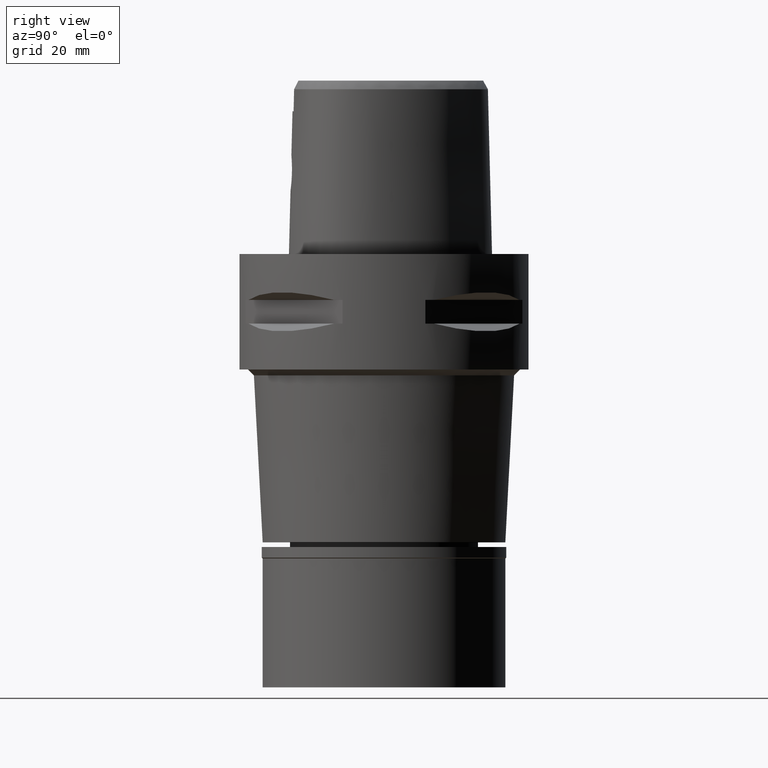
[diagram: clean part render]
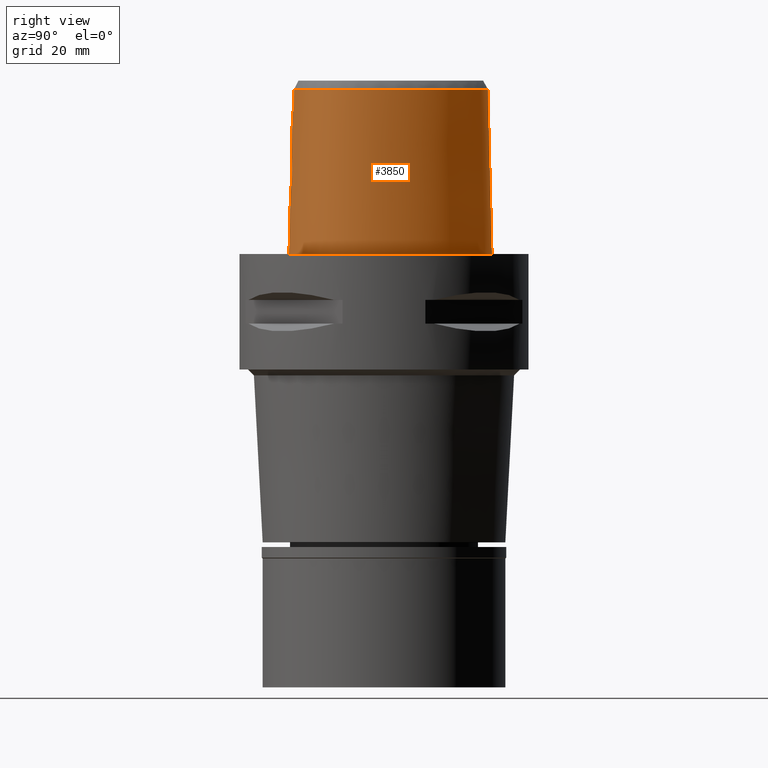
[diagram: same view with one face highlighted and labeled with its STEP entity id]
A machine part, right view. The second image highlights one B-rep face of the part: STEP entity #3850.
In plain terms, the highlighted face is a freeform B-spline surface patch.
Its self-contained STEP definition (entity closure, byte-faithful):
#26 = CARTESIAN_POINT ( 'NONE',  ( 2.975249651912823978, -15.92914271478721844, 14.67846616982687458 ) ) ;
#31 = CARTESIAN_POINT ( 'NONE',  ( 6.782136804503950174E-08, -15.90128720080378955, 22.15000025259135441 ) ) ;
#46 = VERTEX_POINT ( 'NONE', #3898 ) ;
#50 = CARTESIAN_POINT ( 'NONE',  ( 3.041209740384549942, -15.94490574327321930, 13.76368115324908281 ) ) ;
#74 = CARTESIAN_POINT ( 'NONE',  ( 1.935527014342864449, -16.09705987418944773, 11.64218429701640112 ) ) ;
#97 = CARTESIAN_POINT ( 'NONE',  ( 3.048883421515427461, -15.94046337244652278, 13.90502257973829003 ) ) ;
#106 = CARTESIAN_POINT ( 'NONE',  ( 16.68217931977999768, -8.451606616077000922, -0.5704146339717000025 ) ) ;
#127 = CARTESIAN_POINT ( 'NONE',  ( 0.1898211197376006576, -16.18126839358999547, 10.94999999999999574 ) ) ;
#161 = CARTESIAN_POINT ( 'NONE',  ( 11.57144730512000130, -13.50085886465999963, 9.316772354871000417 ) ) ;
#164 = LINE ( 'NONE', #3989, #2437 ) ;
#184 = CARTESIAN_POINT ( 'NONE',  ( 1.286803365320000170, -15.75925590089000039, 29.09114633255999749 ) ) ;
#233 = B_SPLINE_SURFACE_WITH_KNOTS ( 'NONE', 3, 3, ( 
 ( #3558, #1279, #1700, #2074 ),
 ( #4782, #3184, #3986, #545 ),
 ( #2502, #3158, #2048, #184 ),
 ( #1682, #4755, #4336, #3959 ),
 ( #3583, #1324, #567, #4711 ),
 ( #2862, #161, #4729, #4685 ),
 ( #4390, #1297, #4412, #1348 ),
 ( #1657, #968, #1257, #4012 ),
 ( #590, #2094, #2833, #3628 ),
 ( #989, #2124, #4361, #2812 ),
 ( #106, #2792, #4316, #913 ),
 ( #2411, #892, #3930, #518 ),
 ( #2024, #1800, #4167, #341 ),
 ( #1772, #1115, #3304, #2173 ),
 ( #2228, #1847, #2629, #1062 ),
 ( #1448, #3674, #3008, #1477 ),
 ( #238, #3281, #4538, #1374 ),
 ( #2200, #3378, #1038, #695 ),
 ( #1086, #2530, #2961, #3753 ),
 ( #4905, #2605, #1748, #2984 ),
 ( #4804, #741, #3654, #4826 ),
 ( #2911, #4143, #3729, #721 ),
 ( #4855, #4067, #4436, #4488 ),
 ( #1015, #646, #2150, #264 ) ),
 .UNSPECIFIED., .F., .F., .F.,
 ( 4, 1, 1, 1, 1, 1, 1, 1, 1, 1, 1, 1, 1, 1, 1, 1, 1, 1, 1, 1, 1, 4 ),
 ( 4, 4 ),
 ( -0.01796851319152999865, 0.0000000000000000000, 0.08333333333362000217, 0.1666666666669000263, 0.2083333333334000115, 0.2500000000000000000, 0.2916666666666999919, 0.3124999999998999689, 0.3333333333332000326, 0.3541666666666000163, 0.3749999999998999689, 0.4166666666665000407, 0.4583333333330000259, 0.4999999999996999622, 0.5833333333328000192, 0.6666666666660999718, 0.7499999999993000044, 0.8333333333325000369, 0.9166666666657999896, 0.9583333333322999747, 1.000000000000000000, 1.011711214084999977 ),
 ( 3.247663856592999975E-09, 0.9999998343691000047 ),
 .UNSPECIFIED. ) ;
#238 = CARTESIAN_POINT ( 'NONE',  ( 14.39249255082999923, 8.309508947907000120, -0.5704146339717000025 ) ) ;
#254 = CARTESIAN_POINT ( 'NONE',  ( 1.859549321997236992, -15.98255794229956628, 16.41807320997656561 ) ) ;
#256 = CARTESIAN_POINT ( 'NONE',  ( 4.728927209931854669, 17.73480469412656291, -2.900161846786097897E-07 ) ) ;
#264 = CARTESIAN_POINT ( 'NONE',  ( -0.5293535142052000486, 17.95181578524999821, 29.09114633255999749 ) ) ;
#336 = CARTESIAN_POINT ( 'NONE',  ( 17.71143736288551196, -3.269218749953240355, -2.900161846786097897E-07 ) ) ;
#341 = CARTESIAN_POINT ( 'NONE',  ( 16.84071414986000192, -5.352498125280000352, 29.09114633255999749 ) ) ;
#396 = CARTESIAN_POINT ( 'NONE',  ( 2.030224829794000080E-07, -15.83752876601000281, 24.70000006102999990 ) ) ;
#404 = CARTESIAN_POINT ( 'NONE',  ( 15.84228676733546948, 3.460033425849510902, 28.52071728562183495 ) ) ;
#435 = CARTESIAN_POINT ( 'NONE',  ( 2.130834279647308982, -16.07853149005595839, 11.81777582520773784 ) ) ;
#462 = CARTESIAN_POINT ( 'NONE',  ( 1.158353828547446396, -16.15167258786867777, 11.17852165137637144 ) ) ;
#470 = CARTESIAN_POINT ( 'NONE',  ( 3.191384142201736829, -15.58827398948734633, 27.24714251809000132 ) ) ;
#471 = VERTEX_POINT ( 'NONE', #2406 ) ;
#490 = CARTESIAN_POINT ( 'NONE',  ( 0.6770584128777843436, -16.17132556088388995, 11.02443681068324643 ) ) ;
#500 = CARTESIAN_POINT ( 'NONE',  ( 13.06460231238459713, -11.91950040983860326, 28.52071728562183495 ) ) ;
#508 = VERTEX_POINT ( 'NONE', #1696 ) ;
#510 = CARTESIAN_POINT ( 'NONE',  ( 0.9939297242891761419, -16.15959612542590662, 11.11569146158397814 ) ) ;
#518 = CARTESIAN_POINT ( 'NONE',  ( 16.46533711003999656, -6.958244310690000489, 29.09114633255999749 ) ) ;
#545 = CARTESIAN_POINT ( 'NONE',  ( -0.7074880730382999694, -15.72098119543000116, 29.09114633255999749 ) ) ;
#567 = CARTESIAN_POINT ( 'NONE',  ( 8.782085154623000989, -14.58525472112999921, 19.20395934371000024 ) ) ;
#578 = CARTESIAN_POINT ( 'NONE',  ( 0.0000000000000000000, -16.02877864023999877, 17.05000000000000071 ) ) ;
#590 = CARTESIAN_POINT ( 'NONE',  ( 15.66039569233999806, -10.22138777337000093, -0.5704146339717000025 ) ) ;
#637 = CARTESIAN_POINT ( 'NONE',  ( 1.779262221764184249, -15.98633376436653108, 16.47774649146144554 ) ) ;
#646 = CARTESIAN_POINT ( 'NONE',  ( -0.5593289302134000218, 18.44521841955999619, 9.316772354871000417 ) ) ;
#665 = CARTESIAN_POINT ( 'NONE',  ( 5.051093168858154847, -16.15562500717818750, -2.900161846786097897E-07 ) ) ;
#695 = CARTESIAN_POINT ( 'NONE',  ( 10.90668509680000042, 11.98047077936000093, 29.09114633255999749 ) ) ;
#721 = CARTESIAN_POINT ( 'NONE',  ( 0.4511781795182999710, 17.98656552537999787, 29.09114633255999749 ) ) ;
#741 = CARTESIAN_POINT ( 'NONE',  ( 1.992618751591999748, 18.32080818435999703, 9.316772354871000417 ) ) ;
#771 = CARTESIAN_POINT ( 'NONE',  ( 4.422474504765450121, 17.08283549833562276, 28.52071728562183495 ) ) ;
#798 = CARTESIAN_POINT ( 'NONE',  ( 1.893775678556270714, 17.84807068955530696, 28.52071728562183495 ) ) ;
#811 = CARTESIAN_POINT ( 'NONE',  ( 3.027798455715707604, -15.95003164277662755, 13.62032956274716966 ) ) ;
#831 = CARTESIAN_POINT ( 'NONE',  ( 2.821425036078518023, -15.93312409536605578, 15.15848376097717853 ) ) ;
#838 = CARTESIAN_POINT ( 'NONE',  ( 3.213444788215948034, -15.61774735051721308, 25.97357128944999971 ) ) ;
#858 = CARTESIAN_POINT ( 'NONE',  ( 2.520317714005605225, -15.94834054842958437, 15.72060082174885132 ) ) ;
#871 = CARTESIAN_POINT ( 'NONE',  ( 15.58740368722119385, -8.999391713746996757, 28.52071728562183495 ) ) ;
#892 = CARTESIAN_POINT ( 'NONE',  ( 16.94089132185999702, -7.099401466331999977, 9.316772354871000417 ) ) ;
#913 = CARTESIAN_POINT ( 'NONE',  ( 16.00353260420999746, -8.149703205087000413, 29.09114633255999749 ) ) ;
#938 = CARTESIAN_POINT ( 'NONE',  ( 3.235096591086000117, -15.64751801257999908, 24.70000006080999810 ) ) ;
#959 = CARTESIAN_POINT ( 'NONE',  ( 2.170299400654048583, -15.96703807926082241, 16.14297866672071891 ) ) ;
#968 = CARTESIAN_POINT ( 'NONE',  ( 14.61870769482999854, -11.12154151466999963, 9.316772354871000417 ) ) ;
#979 = CARTESIAN_POINT ( 'NONE',  ( 2.356615372638851014, -15.95714923954086295, 15.93698914121854315 ) ) ;
#989 = CARTESIAN_POINT ( 'NONE',  ( 16.21839714654000275, -9.363695958397999064, -0.5704146339717000025 ) ) ;
#1005 = CARTESIAN_POINT ( 'NONE',  ( 2.164021906619612245, -15.96736812113673842, 16.14931344321803053 ) ) ;
#1008 = CARTESIAN_POINT ( 'NONE',  ( 17.56373943654394765, -5.455996094781043304, -2.900161846786097897E-07 ) ) ;
#1015 = CARTESIAN_POINT ( 'NONE',  ( -0.5743166382175000084, 18.69191973670999829, -0.5704146339717000025 ) ) ;
#1038 = CARTESIAN_POINT ( 'NONE',  ( 11.09665502580999963, 12.14079280206000000, 19.20395934371000024 ) ) ;
#1062 = CARTESIAN_POINT ( 'NONE',  ( 16.77753622267999845, -0.3562822893972000249, 29.09114633255999749 ) ) ;
#1067 = DIRECTION ( 'NONE',  ( -1.987095108678950929E-12, -0.02499051295371941192, -0.9996876883618752707 ) ) ;
#1076 = VERTEX_POINT ( 'NONE', #1424 ) ;
#1086 = CARTESIAN_POINT ( 'NONE',  ( 7.976721800635999671, 15.84201698484000076, -0.5704146339717000025 ) ) ;
#1115 = CARTESIAN_POINT ( 'NONE',  ( 17.47781020796999840, -3.270737581694000085, 9.316772354871000417 ) ) ;
#1200 = CARTESIAN_POINT ( 'NONE',  ( 2.852909278454515363, -15.93189406616820136, 15.07915126970514308 ) ) ;
#1219 = CARTESIAN_POINT ( 'NONE',  ( 2.759961640973259911, -15.93564958624568639, 15.30749493561489238 ) ) ;
#1230 = CARTESIAN_POINT ( 'NONE',  ( 3.168920890822999770, -15.55911073834000113, 28.52071374672999582 ) ) ;
#1244 = CARTESIAN_POINT ( 'NONE',  ( 2.076784380864719726, -16.08390063340834786, 11.76594178764675114 ) ) ;
#1252 = CARTESIAN_POINT ( 'NONE',  ( 3.235096591086000117, -15.64751801257999908, 24.70000006080999810 ) ) ;
#1257 = CARTESIAN_POINT ( 'NONE',  ( 14.43869631368000128, -10.95090978980999985, 19.20395934371000024 ) ) ;
#1269 = CARTESIAN_POINT ( 'NONE',  ( -3.094567913400000190E-12, -16.18126839358999902, 10.94999999999999929 ) ) ;
#1279 = CARTESIAN_POINT ( 'NONE',  ( -1.079551362552999993, -16.20136646647000234, 9.316772354871000417 ) ) ;
#1297 = CARTESIAN_POINT ( 'NONE',  ( 13.36241664513000060, -12.29868534039000139, 9.316772354871000417 ) ) ;
#1316 = CARTESIAN_POINT ( 'NONE',  ( 1.898958778535287495, -15.98067541706731376, 16.38724889510307747 ) ) ;
#1324 = CARTESIAN_POINT ( 'NONE',  ( 8.866858747505999006, -14.81887821867000099, 9.316772354871000417 ) ) ;
#1339 = CARTESIAN_POINT ( 'NONE',  ( 2.196663950529425868, -15.96564993910013008, 16.11602529263611316 ) ) ;
#1344 = EDGE_CURVE ( 'NONE', #508, #1641, #3837, .T. ) ;
#1348 = CARTESIAN_POINT ( 'NONE',  ( 13.05575611195000008, -11.90823719806999925, 29.09114633255999749 ) ) ;
#1364 = CARTESIAN_POINT ( 'NONE',  ( 1.737183591012293027, -15.98828192606207388, 16.50739953107601821 ) ) ;
#1374 = CARTESIAN_POINT ( 'NONE',  ( 13.74710214631999960, 7.936918656731999810, 29.09114633255999749 ) ) ;
#1394 = CARTESIAN_POINT ( 'NONE',  ( 0.6801907863946490274, 18.69500000724892175, -2.900161846786097897E-07 ) ) ;
#1403 = EDGE_CURVE ( 'NONE', #471, #2338, #1931, .T. ) ;
#1424 = CARTESIAN_POINT ( 'NONE',  ( -2.866360985331999843E-11, 17.98202997909999823, 28.52071728569000086 ) ) ;
#1425 = CARTESIAN_POINT ( 'NONE',  ( 3.168920890822999770, -15.55911073834000113, 28.52071374672999582 ) ) ;
#1448 = CARTESIAN_POINT ( 'NONE',  ( 16.53021708422999936, 3.708305583942999917, -0.5704146339717000025 ) ) ;
#1477 = CARTESIAN_POINT ( 'NONE',  ( 15.82879759007999709, 3.455165218901999680, 29.09114633255999749 ) ) ;
#1492 = CARTESIAN_POINT ( 'NONE',  ( 16.66912842803894534, -8.445800784202134537, -2.900161846786097897E-07 ) ) ;
#1540 = CARTESIAN_POINT ( 'NONE',  ( 2.907704111751938214, -15.93016185020670861, 14.92213459652817953 ) ) ;
#1555 = CARTESIAN_POINT ( 'NONE',  ( 3.235096591086000117, -15.64751801257999908, 24.70000006080999810 ) ) ;
#1570 = CARTESIAN_POINT ( 'NONE',  ( 2.796681338619851243, -15.99533385695051813, 12.78273984513788442 ) ) ;
#1594 = CARTESIAN_POINT ( 'NONE',  ( 2.951306861662620129, -15.92924742299003960, 14.77626636585412001 ) ) ;
#1606 = CARTESIAN_POINT ( 'NONE',  ( 15.07117004567324869, -9.793013887526587524, 28.52071728562183495 ) ) ;
#1617 = CARTESIAN_POINT ( 'NONE',  ( 3.049961347112722265, -15.93921296701098989, 13.94964838113523520 ) ) ;
#1641 = VERTEX_POINT ( 'NONE', #4124 ) ;
#1645 = CARTESIAN_POINT ( 'NONE',  ( 1.719191830040013080, -16.11523926597387302, 11.47872671524808474 ) ) ;
#1657 = CARTESIAN_POINT ( 'NONE',  ( 14.79871907599000025, -11.29217323954000207, -0.5704146339717000025 ) ) ;
#1682 = CARTESIAN_POINT ( 'NONE',  ( 5.053620743580999886, -16.16974068325999880, -0.5704146339717000025 ) ) ;
#1696 = CARTESIAN_POINT ( 'NONE',  ( 2.030224829794000080E-07, -15.83752876601000281, 24.70000006102999990 ) ) ;
#1700 = CARTESIAN_POINT ( 'NONE',  ( -1.070056062469000091, -15.95437371537000004, 19.20395934371000024 ) ) ;
#1748 = CARTESIAN_POINT ( 'NONE',  ( 4.522582283159000127, 17.29581187828000211, 19.20395934371000024 ) ) ;
#1766 = CARTESIAN_POINT ( 'NONE',  ( 2.040572359159892546, 18.55015625714442606, -2.900161846786097897E-07 ) ) ;
#1772 = CARTESIAN_POINT ( 'NONE',  ( 17.72574105853000148, -3.269125760304999684, -0.5704146339717000025 ) ) ;
#1800 = CARTESIAN_POINT ( 'NONE',  ( 17.33218231368999795, -5.422849685547000753, 9.316772354871000417 ) ) ;
#1819 = CARTESIAN_POINT ( 'NONE',  ( 9.149203677431999547E-11, 18.69499999997999851, 2.020235830475999669E-13 ) ) ;
#1847 = CARTESIAN_POINT ( 'NONE',  ( 17.26695539681000113, -0.2694874652317999497, 9.316772354871000417 ) ) ;
#1867 = CARTESIAN_POINT ( 'NONE',  ( -2.486005696898000252E-11, -16.45500000000000185, 2.032818358088999889E-13 ) ) ;
#1906 = CARTESIAN_POINT ( 'NONE',  ( 16.99625257117610744, -3.273868232426860647, 28.52071728562183495 ) ) ;
#1917 = CARTESIAN_POINT ( 'NONE',  ( 3.050149896193000476, -15.93316336324771676, 14.18941404704232490 ) ) ;
#1930 = CARTESIAN_POINT ( 'NONE',  ( 13.75951381385726258, 7.944084035686027612, 28.52071728562183495 ) ) ;
#1931 = B_SPLINE_CURVE_WITH_KNOTS ( 'NONE', 3,
 ( #1867, #2598, #665, #3403, #2169, #4484, #4926, #4532, #4163, #1492, #3352, #1008, #336, #2549, #4060, #3772, #4849, #2146, #256, #1766, #1394, #1819 ),
 .UNSPECIFIED., .F., .F.,
 ( 4, 1, 1, 1, 1, 1, 1, 1, 1, 1, 1, 1, 1, 1, 1, 1, 1, 1, 1, 4 ),
 ( 0.0000000000000000000, 0.08333333333362000217, 0.1666666666669000263, 0.2083333333334000115, 0.2500000000000000000, 0.2916666666666999919, 0.3124999999998999689, 0.3333333333332000326, 0.3541666666666000163, 0.3749999999998999689, 0.4166666666665000407, 0.4583333333330000259, 0.4999999999996999622, 0.5833333333328000192, 0.6666666666660999718, 0.7499999999993000044, 0.8333333333325000369, 0.9166666666657999896, 0.9583333333322999747, 1.000000000000000000 ),
 .UNSPECIFIED. ) ;
#1940 = CARTESIAN_POINT ( 'NONE',  ( 2.806282367902103836, -15.99380854387472084, 12.80500890572250228 ) ) ;
#1970 = CARTESIAN_POINT ( 'NONE',  ( 2.775961287969037183, -15.99857004330619148, 12.73620107529055190 ) ) ;
#1984 = CARTESIAN_POINT ( 'NONE',  ( -2.866360985331999843E-11, 17.98202997909999823, 28.52071728569000086 ) ) ;
#1996 = CARTESIAN_POINT ( 'NONE',  ( 3.044506884776515321, -15.94333381584075582, 13.81108558313461110 ) ) ;
#2003 = CARTESIAN_POINT ( 'NONE',  ( 1.084489111473279310, -15.83754148654025684, 24.70000016056461689 ) ) ;
#2005 = CARTESIAN_POINT ( 'NONE',  ( 11.33338046473958549, -13.08225241901623015, 28.52071728562183495 ) ) ;
#2016 = CARTESIAN_POINT ( 'NONE',  ( 1.150837130458770563, -16.15205889506641057, 11.17544410961306589 ) ) ;
#2024 = CARTESIAN_POINT ( 'NONE',  ( 17.57791639559999908, -5.458025465679999577, -0.5704146339717000025 ) ) ;
#2048 = CARTESIAN_POINT ( 'NONE',  ( 1.298308559161999831, -16.00668754879000133, 19.20395934371000024 ) ) ;
#2074 = CARTESIAN_POINT ( 'NONE',  ( -1.060560762384000100, -15.70738096428000041, 29.09114633255999749 ) ) ;
#2094 = CARTESIAN_POINT ( 'NONE',  ( 15.46013589622000062, -10.07579657664000017, 9.316772354871000417 ) ) ;
#2124 = CARTESIAN_POINT ( 'NONE',  ( 16.00394174692999982, -9.239880075343000598, 9.316772354871000417 ) ) ;
#2144 = CARTESIAN_POINT ( 'NONE',  ( 1.616099766049515107, -15.99381337938741687, 16.58846643699799728 ) ) ;
#2146 = CARTESIAN_POINT ( 'NONE',  ( 7.967839668740831272, 15.83070313074962066, -2.900161846786097897E-07 ) ) ;
#2150 = CARTESIAN_POINT ( 'NONE',  ( -0.5443412222093000352, 18.19851710240999765, 19.20395934371000024 ) ) ;
#2169 = CARTESIAN_POINT ( 'NONE',  ( 11.68694516943986983, -13.70394531881849609, -2.900161846786097897E-07 ) ) ;
#2173 = CARTESIAN_POINT ( 'NONE',  ( 16.98194850684000201, -3.273961224471999998, 29.09114633255999749 ) ) ;
#2200 = CARTESIAN_POINT ( 'NONE',  ( 11.47659488382999982, 12.46143684746999902, -0.5704146339717000025 ) ) ;
#2228 = CARTESIAN_POINT ( 'NONE',  ( 17.51166498387000203, -0.2260900531490000198, -0.5704146339717000025 ) ) ;
#2262 = EDGE_CURVE ( 'NONE', #1076, #2338, #164, .T. ) ;
#2285 = CARTESIAN_POINT ( 'NONE',  ( 7.523733068098718668, 15.26501041873592790, 28.52071728562183495 ) ) ;
#2298 = CARTESIAN_POINT ( 'NONE',  ( 2.744096643855139739, -16.00346064512362076, 12.66698413766678755 ) ) ;
#2320 = CARTESIAN_POINT ( 'NONE',  ( 2.478737183283747925, -16.03986208745244824, 12.22013516386344989 ) ) ;
#2338 = VERTEX_POINT ( 'NONE', #4321 ) ;
#2344 = CARTESIAN_POINT ( 'NONE',  ( 2.957688824804171279, -15.96752846870873022, 13.22897551199208444 ) ) ;
#2376 = CARTESIAN_POINT ( 'NONE',  ( 0.7748558813816244228, -16.16821842566323042, 11.04831638025946816 ) ) ;
#2389 = CARTESIAN_POINT ( 'NONE',  ( 5.902447799198637490, -15.16907841529767964, 28.52071728562183139 ) ) ;
#2406 = CARTESIAN_POINT ( 'NONE',  ( -2.486005696898000252E-11, -16.45500000000000185, 2.032818358088999889E-13 ) ) ;
#2411 = CARTESIAN_POINT ( 'NONE',  ( 17.17866842776000169, -7.169980044153000165, -0.5704146339717000025 ) ) ;
#2423 = CARTESIAN_POINT ( 'NONE',  ( 2.180887052763814449, -15.96648089881372279, 16.13220278528723384 ) ) ;
#2437 = VECTOR ( 'NONE', #2840, 1000.000000000000114 ) ;
#2492 = CARTESIAN_POINT ( 'NONE',  ( 1.354452607727719249, -16.00396228356807171, 16.73322745257438626 ) ) ;
#2502 = CARTESIAN_POINT ( 'NONE',  ( 1.321318946846000042, -16.50155084457999877, -0.5704146339717000025 ) ) ;
#2522 = CARTESIAN_POINT ( 'NONE',  ( 0.7741482008191986619, -16.02257322970521614, 16.98085959781949938 ) ) ;
#2530 = CARTESIAN_POINT ( 'NONE',  ( 7.822764769509999994, 15.64591008089999669, 9.316772354871000417 ) ) ;
#2549 = CARTESIAN_POINT ( 'NONE',  ( 17.49754713025602015, -0.2285937487269749380, -2.900161846786097897E-07 ) ) ;
#2598 = CARTESIAN_POINT ( 'NONE',  ( 1.683697722945638242, -16.45500000724721801, -2.900161846786097897E-07 ) ) ;
#2605 = CARTESIAN_POINT ( 'NONE',  ( 4.628819273556000091, 17.52182797807000014, 9.316772354871000417 ) ) ;
#2629 = CARTESIAN_POINT ( 'NONE',  ( 17.02224580973999934, -0.3128848773144999873, 19.20395934371000024 ) ) ;
#2698 = CARTESIAN_POINT ( 'NONE',  ( 2.147962331140137238, -16.07679769526338731, 11.83463701146487246 ) ) ;
#2724 = CARTESIAN_POINT ( 'NONE',  ( 2.824468722466921378, -15.93300016794370677, 15.15105085638172433 ) ) ;
#2746 = CARTESIAN_POINT ( 'NONE',  ( 2.681016418395045342, -15.93974068711152547, 15.46783011061541835 ) ) ;
#2766 = LINE ( 'NONE', #4295, #4518 ) ;
#2777 = CARTESIAN_POINT ( 'NONE',  ( 2.638828814099706932, -16.01860464026678343, 12.46732066279884243 ) ) ;
#2792 = CARTESIAN_POINT ( 'NONE',  ( 16.45596374792000205, -8.350972145746998976, 9.316772354871000417 ) ) ;
#2804 = CARTESIAN_POINT ( 'NONE',  ( 2.587629427716052533, -16.02556131009697893, 12.38252332210732654 ) ) ;
#2812 = CARTESIAN_POINT ( 'NONE',  ( 15.57503094770000018, -8.992248309233000114, 29.09114633255999749 ) ) ;
#2823 = ORIENTED_EDGE ( 'NONE', *, *, #4380, .F. ) ;
#2833 = CARTESIAN_POINT ( 'NONE',  ( 15.25987610008999873, -9.930205379906000829, 19.20395934371000024 ) ) ;
#2840 = DIRECTION ( 'NONE',  ( 4.211609386183893157E-12, 0.02499051285773934081, -0.9996876883642746847 ) ) ;
#2853 = CARTESIAN_POINT ( 'NONE',  ( 2.088968113521979753, -15.97131126311716898, 16.22457167555463542 ) ) ;
#2862 = CARTESIAN_POINT ( 'NONE',  ( 11.69401646344000056, -13.71637917664999939, -0.5704146339717000025 ) ) ;
#2877 = CARTESIAN_POINT ( 'NONE',  ( 2.320231428406520635, -15.95909571851455588, 15.98050410814317424 ) ) ;
#2880 = VERTEX_POINT ( 'NONE', #938 ) ;
#2887 = FACE_OUTER_BOUND ( 'NONE', #3360, .T. ) ;
#2900 = CARTESIAN_POINT ( 'NONE',  ( 1.262794661676007291, -16.00712763199256727, 16.77676499123157683 ) ) ;
#2911 = CARTESIAN_POINT ( 'NONE',  ( 0.4897519512914999540, 18.72964555453999935, -0.5704146339717000025 ) ) ;
#2923 = ORIENTED_EDGE ( 'NONE', *, *, #1403, .T. ) ;
#2931 = CARTESIAN_POINT ( 'NONE',  ( 2.232748692361829157, -15.96374470980125082, 16.07819212816551158 ) ) ;
#2961 = CARTESIAN_POINT ( 'NONE',  ( 7.668807738384000317, 15.44980317695999972, 19.20395934371000024 ) ) ;
#2971 = ORIENTED_EDGE ( 'NONE', *, *, #1344, .T. ) ;
#2984 = CARTESIAN_POINT ( 'NONE',  ( 4.416345292761000074, 17.06979577849000052, 29.09114633255999749 ) ) ;
#2999 = ORIENTED_EDGE ( 'NONE', *, *, #3359, .T. ) ;
#3008 = CARTESIAN_POINT ( 'NONE',  ( 16.06260408813000140, 3.539545340581999877, 19.20395934371000024 ) ) ;
#3061 = CARTESIAN_POINT ( 'NONE',  ( 16.85489147434090285, -5.354527548487958200, 28.52071728562183495 ) ) ;
#3073 = CARTESIAN_POINT ( 'NONE',  ( 1.805376232608846498, -16.10834772479885402, 11.53923680361573822 ) ) ;
#3101 = CARTESIAN_POINT ( 'NONE',  ( 2.829313881745448622, -15.93280562740808826, 15.13908937170598179 ) ) ;
#3123 = CARTESIAN_POINT ( 'NONE',  ( 2.883981873338816282, -15.93080840504316420, 14.99485968243840972 ) ) ;
#3133 = CARTESIAN_POINT ( 'NONE',  ( 3.738627708319794962, -15.49270856215552783, 28.52071728562183850 ) ) ;
#3158 = CARTESIAN_POINT ( 'NONE',  ( 1.309813753003999937, -16.25411919668999872, 9.316772354871000417 ) ) ;
#3170 = CARTESIAN_POINT ( 'NONE',  ( 0.3842297570385789229, -16.17878268541347708, 10.96777226348877221 ) ) ;
#3184 = CARTESIAN_POINT ( 'NONE',  ( -0.7201291715429999352, -16.21519150405000076, 9.316772354871000417 ) ) ;
#3281 = CARTESIAN_POINT ( 'NONE',  ( 14.17736241599000024, 8.185312184181999129, 9.316772354871000417 ) ) ;
#3304 = CARTESIAN_POINT ( 'NONE',  ( 17.22987935740000154, -3.272349403083000041, 19.20395934371000024 ) ) ;
#3352 = CARTESIAN_POINT ( 'NONE',  ( 17.16495052477883121, -7.165908205195114178, -2.900161846786097897E-07 ) ) ;
#3359 = EDGE_CURVE ( 'NONE', #1076, #3911, #4255, .T. ) ;
#3360 = EDGE_LOOP ( 'NONE', ( #4324, #2999, #2823, #3619, #2971, #4913, #3482, #2923 ) ) ;
#3378 = CARTESIAN_POINT ( 'NONE',  ( 11.28662495482000061, 12.30111482476999996, 9.316772354871000417 ) ) ;
#3381 = EDGE_CURVE ( 'NONE', #46, #471, #2766, .T. ) ;
#3403 = CARTESIAN_POINT ( 'NONE',  ( 8.946741558671778449, -15.03902344434910532, -2.900161846786097897E-07 ) ) ;
#3449 = CARTESIAN_POINT ( 'NONE',  ( 3.032153927794988046, -15.93034332000361708, 14.38503233290864713 ) ) ;
#3473 = CARTESIAN_POINT ( 'NONE',  ( 1.120763508487453430, -16.15358090583465511, 11.16333240776607560 ) ) ;
#3482 = ORIENTED_EDGE ( 'NONE', *, *, #3381, .T. ) ;
#3498 = CARTESIAN_POINT ( 'NONE',  ( 2.141618861872676138, -16.07744231414368841, 11.82835874812642984 ) ) ;
#3510 = CARTESIAN_POINT ( 'NONE',  ( 0.6295828025445653342, 17.98202997637497447, 28.52071728562183495 ) ) ;
#3520 = CARTESIAN_POINT ( 'NONE',  ( 1.466707760604498256, -16.13401281180512115, 11.31839107166932834 ) ) ;
#3531 = CARTESIAN_POINT ( 'NONE',  ( 8.702202469521855832, -14.36510984286640991, 28.52071728562183495 ) ) ;
#3539 = B_SPLINE_CURVE_WITH_KNOTS ( 'NONE', 3,
 ( #1555, #4656, #2003, #4570 ),
 .UNSPECIFIED., .F., .F.,
 ( 4, 4 ),
 ( 0.0000000000000000000, 1.000000000000000000 ),
 .UNSPECIFIED. ) ;
#3547 = CARTESIAN_POINT ( 'NONE',  ( 2.044225401081650073, -16.08701963945036084, 11.73626748626440630 ) ) ;
#3558 = CARTESIAN_POINT ( 'NONE',  ( -1.089046662636999896, -16.44835921756000019, -0.5704146339717000025 ) ) ;
#3583 = CARTESIAN_POINT ( 'NONE',  ( 8.951632340390000664, -15.05250171620000010, -0.5704146339717000025 ) ) ;
#3588 = B_SPLINE_CURVE_WITH_KNOTS ( 'NONE', 3,
 ( #1252, #838, #470, #3854 ),
 .UNSPECIFIED., .F., .F.,
 ( 4, 4 ),
 ( 0.0000000000000000000, 1.000000000000000000 ),
 .UNSPECIFIED. ) ;
#3619 = ORIENTED_EDGE ( 'NONE', *, *, #3750, .T. ) ;
#3628 = CARTESIAN_POINT ( 'NONE',  ( 15.05961630396999951, -9.784614183172999802, 29.09114633255999749 ) ) ;
#3644 = CARTESIAN_POINT ( 'NONE',  ( 1.399412083726095268, -16.00233608542867358, 16.71046994217811488 ) ) ;
#3654 = CARTESIAN_POINT ( 'NONE',  ( 1.941729210450999776, 18.07741840039999914, 19.20395934371000024 ) ) ;
#3668 = CARTESIAN_POINT ( 'NONE',  ( 0.3724840145390406754, -16.02877864023999877, 17.04999999999999361 ) ) ;
#3674 = CARTESIAN_POINT ( 'NONE',  ( 16.29641058618000216, 3.623925462263000163, 9.316772354871000417 ) ) ;
#3729 = CARTESIAN_POINT ( 'NONE',  ( 0.4640361034427000209, 18.23425886843000043, 19.20395934371000024 ) ) ;
#3750 = EDGE_CURVE ( 'NONE', #2880, #508, #3539, .T. ) ;
#3753 = CARTESIAN_POINT ( 'NONE',  ( 7.514850707257999751, 15.25369627301999920, 29.09114633255999749 ) ) ;
#3772 = CARTESIAN_POINT ( 'NONE',  ( 14.38008120320724714, 8.302343753642793089, -2.900161846786097897E-07 ) ) ;
#3810 = CARTESIAN_POINT ( 'NONE',  ( 10.91764517732384476, 11.98972036053159052, 28.52071728562183495 ) ) ;
#3821 = CARTESIAN_POINT ( 'NONE',  ( 2.417729193041642688, -16.04731727844026423, 12.13798983179897029 ) ) ;
#3837 = B_SPLINE_CURVE_WITH_KNOTS ( 'NONE', 3,
 ( #396, #31, #3901, #3849 ),
 .UNSPECIFIED., .F., .F.,
 ( 4, 4 ),
 ( 0.0000000000000000000, 1.000000000000000000 ),
 .UNSPECIFIED. ) ;
#3849 = CARTESIAN_POINT ( 'NONE',  ( 0.0000000000000000000, -16.02877864023999877, 17.05000000000000071 ) ) ;
#3850 = ADVANCED_FACE ( 'NONE', ( #2887 ), #233, .T. ) ;
#3854 = CARTESIAN_POINT ( 'NONE',  ( 3.168920890822999770, -15.55911073834000113, 28.52071374672999582 ) ) ;
#3860 = CARTESIAN_POINT ( 'NONE',  ( 16.47905536661397718, -6.962316254603480026, 28.52071728562183495 ) ) ;
#3871 = CARTESIAN_POINT ( 'NONE',  ( 1.078575942915589891, -16.15565394761469165, 11.14687127074790318 ) ) ;
#3898 = CARTESIAN_POINT ( 'NONE',  ( -3.094567913400000190E-12, -16.18126839358999902, 10.94999999999999929 ) ) ;
#3899 = CARTESIAN_POINT ( 'NONE',  ( 2.114644142904472446, -16.08015782783963843, 11.80200641015005658 ) ) ;
#3901 = CARTESIAN_POINT ( 'NONE',  ( 6.797657524792993908E-08, -15.96503292052325484, 19.60000012629569710 ) ) ;
#3910 = CARTESIAN_POINT ( 'NONE',  ( 14.26907046692954317, -10.79012245165969652, 28.52071728562183495 ) ) ;
#3911 = VERTEX_POINT ( 'NONE', #1425 ) ;
#3923 = CARTESIAN_POINT ( 'NONE',  ( 1.138812104616091059, -16.15267061231298129, 11.17057442770763842 ) ) ;
#3930 = CARTESIAN_POINT ( 'NONE',  ( 16.70311421595000212, -7.028822888510999789, 19.20395934371000024 ) ) ;
#3959 = CARTESIAN_POINT ( 'NONE',  ( 4.922186791168999598, -15.43572515381999999, 29.09114633255999749 ) ) ;
#3976 = CARTESIAN_POINT ( 'NONE',  ( 1.531589067142498539, -15.99732691922906724, 16.63945844436470267 ) ) ;
#3986 = CARTESIAN_POINT ( 'NONE',  ( -0.7138086222906000478, -15.96808634974000007, 19.20395934371000024 ) ) ;
#3989 = CARTESIAN_POINT ( 'NONE',  ( -2.866360985331999843E-11, 17.98202997909999823, 28.52071728569000086 ) ) ;
#4001 = CARTESIAN_POINT ( 'NONE',  ( 2.459696765391575113, -15.95161770387217004, 15.80683248070965163 ) ) ;
#4012 = CARTESIAN_POINT ( 'NONE',  ( 14.25868493253000047, -10.78027806495000185, 29.09114633255999749 ) ) ;
#4057 = CARTESIAN_POINT ( 'NONE',  ( 2.262444582314412145, -15.96216938760131754, 16.04565077979857435 ) ) ;
#4060 = CARTESIAN_POINT ( 'NONE',  ( 16.51672825466217986, 3.703437502475004806, -2.900161846786097897E-07 ) ) ;
#4067 = CARTESIAN_POINT ( 'NONE',  ( -0.3730031656967999765, 18.45651546891000194, 9.316772354871000417 ) ) ;
#4124 = CARTESIAN_POINT ( 'NONE',  ( 0.0000000000000000000, -16.02877864023999877, 17.05000000000000071 ) ) ;
#4143 = CARTESIAN_POINT ( 'NONE',  ( 0.4768940273671000152, 18.48195221148999678, 9.316772354871000417 ) ) ;
#4163 = CARTESIAN_POINT ( 'NONE',  ( 16.20602472592992882, -9.356552738007430037, -2.900161846786097897E-07 ) ) ;
#4167 = CARTESIAN_POINT ( 'NONE',  ( 17.08644823176999950, -5.387673905413000064, 19.20395934371000024 ) ) ;
#4232 = CARTESIAN_POINT ( 'NONE',  ( 2.836520581861567969, -15.93251973351802597, 15.12113420123081475 ) ) ;
#4245 = CARTESIAN_POINT ( 'NONE',  ( 16.79165444019533737, -0.3537785292840521234, 28.52071728562183495 ) ) ;
#4254 = CARTESIAN_POINT ( 'NONE',  ( 2.709953204679841576, -16.00846021379279449, 12.59958595635182732 ) ) ;
#4255 = B_SPLINE_CURVE_WITH_KNOTS ( 'NONE', 3,
 ( #1984, #3510, #798, #771, #2285, #3810, #1930, #404, #4245, #1906, #3061, #3860, #4658, #871, #1606, #3910, #500, #2005, #3531, #2389, #3133, #1230 ),
 .UNSPECIFIED., .F., .F.,
 ( 4, 1, 1, 1, 1, 1, 1, 1, 1, 1, 1, 1, 1, 1, 1, 1, 1, 1, 1, 4 ),
 ( 0.0000000000000000000, 0.04404152929334483740, 0.08808305858542123112, 0.1761661171698911121, 0.2642491757542553832, 0.3523322343386196542, 0.4404152929230895075, 0.5284983515073480298, 0.5725398807996359141, 0.6165814100917123008, 0.6606229393838943809, 0.6826437040299854209, 0.7046644686761821541, 0.7266852333222733051, 0.7487059979682585409, 0.7927475272605464252, 0.8367890565527285052, 0.8808305858448050030, 0.9689136444292536510, 1.000000000000000000 ),
 .UNSPECIFIED. ) ;
#4295 = CARTESIAN_POINT ( 'NONE',  ( -3.094567913400000190E-12, -16.18126839358999902, 10.94999999999999929 ) ) ;
#4307 = CARTESIAN_POINT ( 'NONE',  ( 2.899217746531571382, -15.97873758491098428, 13.02871175161756412 ) ) ;
#4316 = CARTESIAN_POINT ( 'NONE',  ( 16.22974817606999665, -8.250337675417000582, 19.20395934371000024 ) ) ;
#4320 = B_SPLINE_CURVE_WITH_KNOTS ( 'NONE', 3,
 ( #1269, #127, #3170, #490, #2376, #4328, #510, #3871, #3473, #3923, #2016, #462, #4674, #3520, #1645, #3073, #74, #4602, #3547, #1244, #3899, #435, #3498, #2698, #4701, #4626, #3821, #2320, #2804, #2777, #4254, #2298, #1970, #1570, #1940, #4307, #2344, #4647, #811, #50, #1996, #97, #1617, #1917, #3449, #26, #1594, #1540, #3123, #1200, #4232, #3101, #2724, #831, #1219, #2746, #858, #4001, #979, #2877, #4057, #2931, #1339, #2423, #959, #1005, #2853, #4402, #1316, #254, #637, #1364, #2144, #3976, #3644, #2492, #2900, #4795, #2522, #3668, #578 ),
 .UNSPECIFIED., .F., .F.,
 ( 4, 2, 2, 1, 1, 1, 2, 2, 2, 2, 2, 1, 1, 2, 2, 2, 2, 2, 1, 2, 2, 2, 2, 2, 2, 2, 2, 1, 1, 1, 2, 2, 2, 2, 2, 1, 1, 2, 2, 2, 2, 2, 2, 2, 2, 4 ),
 ( 0.0000000000000000000, 0.06250000000001069977, 0.09375000000001598721, 0.1093750000000186101, 0.1171875000000200118, 0.1210937500000205530, 0.1230468750000209277, 0.1250000000000212885, 0.1875000000000273670, 0.2187500000000302536, 0.2343750000000317524, 0.2421875000000324740, 0.2460937500000328626, 0.2480468750000328904, 0.2500000000000329181, 0.2812500000000295319, 0.3125000000000262013, 0.3437500000000228151, 0.3593750000000211497, 0.3671875000000203726, 0.3750000000000195954, 0.4375000000000126010, 0.4687500000000091593, 0.4843750000000076605, 0.5000000000000061062, 0.5624999999999996669, 0.5937499999999962252, 0.6093749999999946709, 0.6171874999999941158, 0.6210937499999936717, 0.6230468749999934497, 0.6249999999999932276, 0.6874999999999920064, 0.7187499999999911182, 0.7343749999999906741, 0.7421874999999908962, 0.7460937499999910072, 0.7480468749999907851, 0.7499999999999905631, 0.7812499999999924505, 0.7968749999999930056, 0.8124999999999935607, 0.8437499999999946709, 0.8593749999999950040, 0.8749999999999953371, 1.000000000000000000 ),
 .UNSPECIFIED. ) ;
#4321 = CARTESIAN_POINT ( 'NONE',  ( 9.149203677431999547E-11, 18.69499999997999851, 2.020235830475999669E-13 ) ) ;
#4324 = ORIENTED_EDGE ( 'NONE', *, *, #2262, .F. ) ;
#4328 = CARTESIAN_POINT ( 'NONE',  ( 0.9209982704669138487, -16.16262558226605250, 11.09193420934360397 ) ) ;
#4336 = CARTESIAN_POINT ( 'NONE',  ( 4.965998108638999931, -15.68039699695999900, 19.20395934371000024 ) ) ;
#4361 = CARTESIAN_POINT ( 'NONE',  ( 15.78948634730999778, -9.116064192288000356, 19.20395934371000024 ) ) ;
#4380 = EDGE_CURVE ( 'NONE', #2880, #3911, #3588, .T. ) ;
#4390 = CARTESIAN_POINT ( 'NONE',  ( 13.51574691171999909, -12.49390941156000068, -0.5704146339717000025 ) ) ;
#4402 = CARTESIAN_POINT ( 'NONE',  ( 2.014841840659067795, -15.97504399877426984, 16.29192479722134124 ) ) ;
#4412 = CARTESIAN_POINT ( 'NONE',  ( 13.20908637854000034, -12.10346126923000121, 19.20395934371000024 ) ) ;
#4436 = CARTESIAN_POINT ( 'NONE',  ( -0.3630721100751999608, 18.20950144688000094, 19.20395934371000024 ) ) ;
#4484 = CARTESIAN_POINT ( 'NONE',  ( 13.50690093929890878, -12.48264649010354255, -2.900161846786097897E-07 ) ) ;
#4488 = CARTESIAN_POINT ( 'NONE',  ( -0.3531410544534999696, 17.96248742484999639, 29.09114633255999749 ) ) ;
#4518 = VECTOR ( 'NONE', #1067, 1000.000000000000114 ) ;
#4532 = CARTESIAN_POINT ( 'NONE',  ( 15.64884224843796012, -10.21298828552151505, -2.900161846786097897E-07 ) ) ;
#4538 = CARTESIAN_POINT ( 'NONE',  ( 13.96223228116000037, 8.061115420457001690, 19.20395934371000024 ) ) ;
#4570 = CARTESIAN_POINT ( 'NONE',  ( 2.030224829794000080E-07, -15.83752876601000281, 24.70000006102999990 ) ) ;
#4602 = CARTESIAN_POINT ( 'NONE',  ( 1.979050802169605827, -16.09313883417849667, 11.67852903117091579 ) ) ;
#4626 = CARTESIAN_POINT ( 'NONE',  ( 2.290593162244018988, -16.06186194956424984, 11.98364703425943567 ) ) ;
#4647 = CARTESIAN_POINT ( 'NONE',  ( 3.014162081768897661, -15.95399573205361854, 13.52323755265707383 ) ) ;
#4656 = CARTESIAN_POINT ( 'NONE',  ( 2.169052010909175987, -15.77399788591500673, 24.70000016056461689 ) ) ;
#4658 = CARTESIAN_POINT ( 'NONE',  ( 16.01658383235042393, -8.155509186612809103, 28.52071728562183495 ) ) ;
#4674 = CARTESIAN_POINT ( 'NONE',  ( 1.306758668679836255, -16.14399373876757338, 11.23972581489134370 ) ) ;
#4685 = CARTESIAN_POINT ( 'NONE',  ( 11.32630898847000012, -13.06981824068999920, 29.09114633255999749 ) ) ;
#4701 = CARTESIAN_POINT ( 'NONE',  ( 2.223227574825756836, -16.06911398227905252, 11.90960399256272062 ) ) ;
#4711 = CARTESIAN_POINT ( 'NONE',  ( 8.697311561738999330, -14.35163122360000010, 29.09114633255999749 ) ) ;
#4729 = CARTESIAN_POINT ( 'NONE',  ( 11.44887814679000115, -13.28533855267999897, 19.20395934371000024 ) ) ;
#4755 = CARTESIAN_POINT ( 'NONE',  ( 5.009809426109999464, -15.92506884010999890, 9.316772354871000417 ) ) ;
#4782 = CARTESIAN_POINT ( 'NONE',  ( -0.7264497207953001245, -16.46229665835999967, -0.5704146339717000025 ) ) ;
#4795 = CARTESIAN_POINT ( 'NONE',  ( 1.217867162102865830, -16.00861105600193213, 16.79681041045230572 ) ) ;
#4804 = CARTESIAN_POINT ( 'NONE',  ( 2.043508292733000165, 18.56419796830999758, -0.5704146339717000025 ) ) ;
#4826 = CARTESIAN_POINT ( 'NONE',  ( 1.890839669310000026, 17.83402861645000215, 29.09114633255999749 ) ) ;
#4849 = CARTESIAN_POINT ( 'NONE',  ( 11.46563508580556956, 12.45218750470917968, -2.900161846786097897E-07 ) ) ;
#4855 = CARTESIAN_POINT ( 'NONE',  ( -0.3829342213183999921, 18.70352949095000028, -0.5704146339717000025 ) ) ;
#4905 = CARTESIAN_POINT ( 'NONE',  ( 4.735056263954001032, 17.74784407786999907, -0.5704146339717000025 ) ) ;
#4913 = ORIENTED_EDGE ( 'NONE', *, *, #4919, .F. ) ;
#4919 = EDGE_CURVE ( 'NONE', #46, #1641, #4320, .T. ) ;
#4926 = CARTESIAN_POINT ( 'NONE',  ( 14.78833380928020169, -11.28232910657180632, -2.900161846786097897E-07 ) ) ;